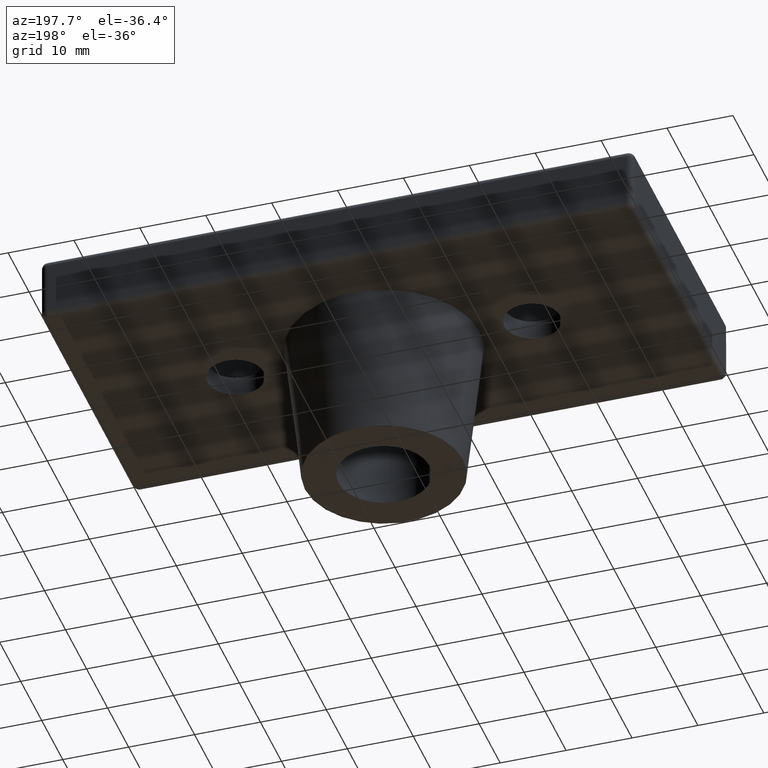
[diagram: clean part render]
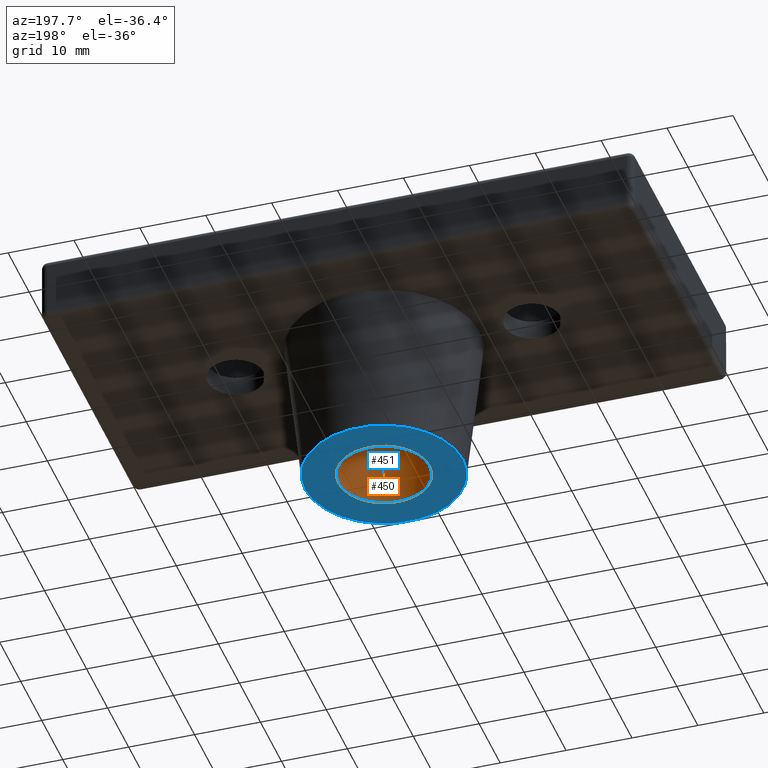
[diagram: same view with the hole feature highlighted: cylindrical wall and planar end face, labeled with their STEP entity ids]
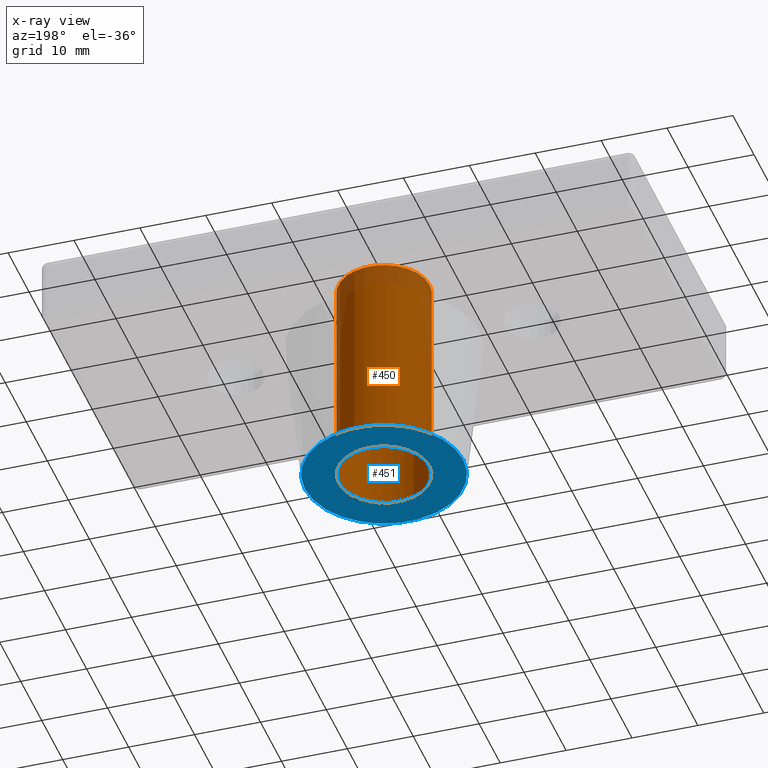
[diagram: x-ray of the same camera — body ghosted, the hole faces saturated]
A machine part, auxiliary view. The highlighted faces form one hole feature of diameter 13.835 mm: the cylindrical wall (entity #450, orange) and its adjacent planar end face (entity #451, blue) — they share a circular edge in the B-rep.
The next image is the same camera in x-ray (body ghosted, the hole faces saturated) — the bore reads through the body.
Wall:
#81=FACE_BOUND('',#132,.T.);
#96=FACE_OUTER_BOUND('',#131,.T.);
#131=EDGE_LOOP('',(#313));
#132=EDGE_LOOP('',(#314));
#181=CIRCLE('',#488,6.9175);
#182=CIRCLE('',#489,6.9175);
#217=VERTEX_POINT('',#728);
#218=VERTEX_POINT('',#730);
#253=EDGE_CURVE('',#217,#217,#181,.T.);
#254=EDGE_CURVE('',#218,#218,#182,.T.);
#313=ORIENTED_EDGE('',*,*,#253,.F.);
#314=ORIENTED_EDGE('',*,*,#254,.F.);
#433=CYLINDRICAL_SURFACE('',#487,6.9175);
#450=ADVANCED_FACE('',(#96,#81),#433,.F.);
#487=AXIS2_PLACEMENT_3D('',#727,#560,#561);
#488=AXIS2_PLACEMENT_3D('',#729,#562,#563);
#489=AXIS2_PLACEMENT_3D('',#731,#564,#565);
#560=DIRECTION('center_axis',(0.,0.,-1.));
#561=DIRECTION('ref_axis',(-1.,0.,0.));
#562=DIRECTION('center_axis',(0.,0.,-1.));
#563=DIRECTION('ref_axis',(-1.,0.,0.));
#564=DIRECTION('center_axis',(0.,0.,1.));
#565=DIRECTION('ref_axis',(-1.,0.,0.));
#727=CARTESIAN_POINT('Origin',(-44.7071067811865,0.,-5.29289321881345));
#728=CARTESIAN_POINT('',(-37.7896067811865,-8.47149423310182E-16,9.70710678118655));
#729=CARTESIAN_POINT('Origin',(-44.7071067811865,0.,9.70710678118655));
#730=CARTESIAN_POINT('',(-51.6246067811865,0.,-22.7928932188135));
#731=CARTESIAN_POINT('Origin',(-44.7071067811865,0.,-22.7928932188135));
End face:
#72=PLANE('',#490);
#82=FACE_BOUND('',#134,.T.);
#97=FACE_OUTER_BOUND('',#133,.T.);
#133=EDGE_LOOP('',(#315));
#134=EDGE_LOOP('',(#316));
#182=CIRCLE('',#489,6.9175);
#183=CIRCLE('',#491,12.);
#218=VERTEX_POINT('',#730);
#219=VERTEX_POINT('',#733);
#254=EDGE_CURVE('',#218,#218,#182,.T.);
#255=EDGE_CURVE('',#219,#219,#183,.T.);
#315=ORIENTED_EDGE('',*,*,#255,.F.);
#316=ORIENTED_EDGE('',*,*,#254,.T.);
#451=ADVANCED_FACE('',(#97,#82),#72,.F.);
#489=AXIS2_PLACEMENT_3D('',#731,#564,#565);
#490=AXIS2_PLACEMENT_3D('',#732,#566,#567);
#491=AXIS2_PLACEMENT_3D('',#734,#568,#569);
#564=DIRECTION('center_axis',(0.,0.,1.));
#565=DIRECTION('ref_axis',(-1.,0.,0.));
#566=DIRECTION('center_axis',(0.,0.,1.));
#567=DIRECTION('ref_axis',(1.,0.,0.));
#568=DIRECTION('center_axis',(0.,0.,1.));
#569=DIRECTION('ref_axis',(-1.,0.,0.));
#730=CARTESIAN_POINT('',(-51.6246067811865,0.,-22.7928932188135));
#731=CARTESIAN_POINT('Origin',(-44.7071067811865,0.,-22.7928932188135));
#732=CARTESIAN_POINT('Origin',(-44.7071067811865,0.,-22.7928932188135));
#733=CARTESIAN_POINT('',(-56.7071067811865,0.,-22.7928932188135));
#734=CARTESIAN_POINT('Origin',(-44.7071067811865,0.,-22.7928932188135));